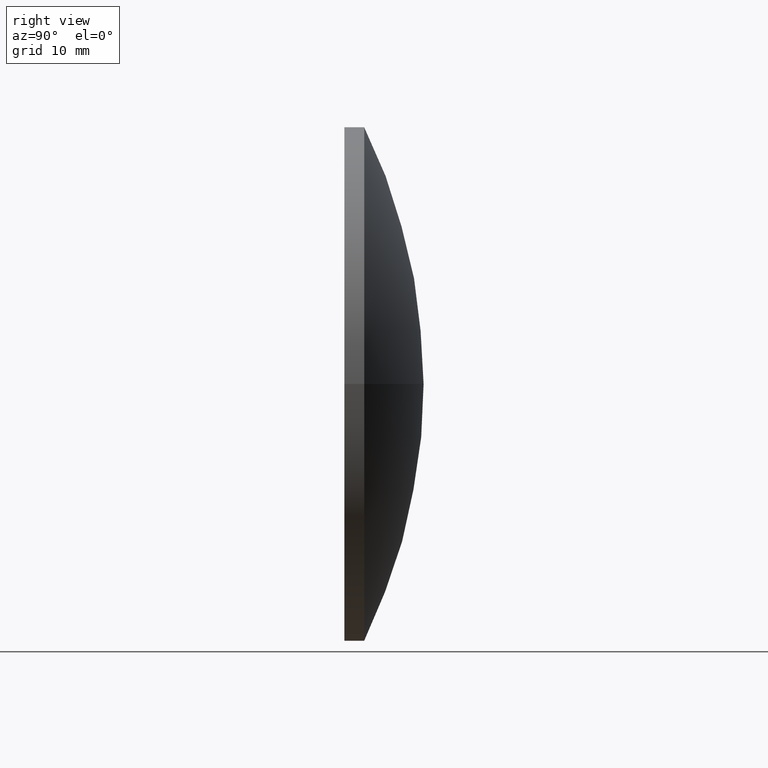
[diagram: clean part render]
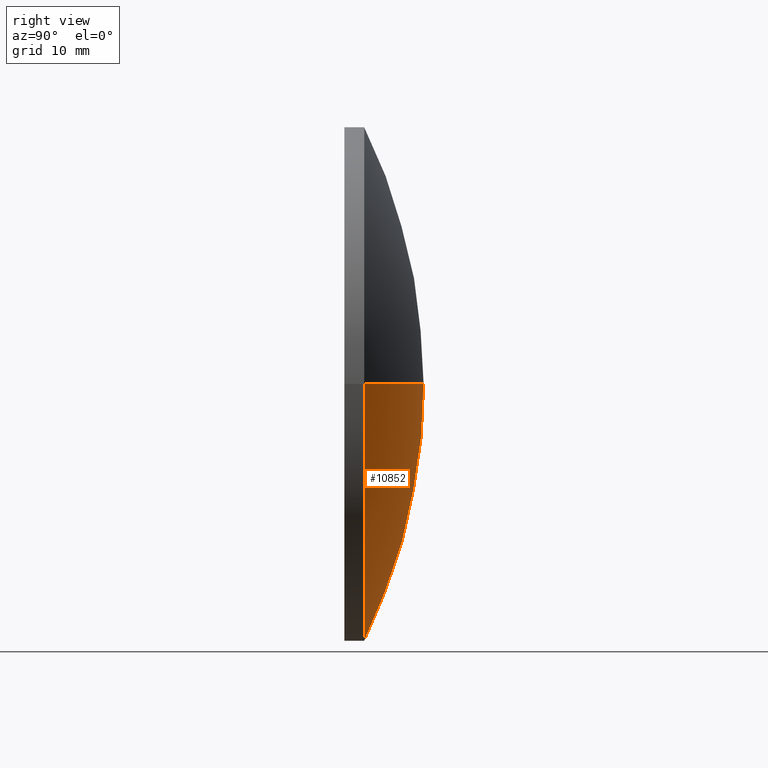
[diagram: same view with one face highlighted and labeled with its STEP entity id]
A machine part, right view. The second image highlights one B-rep face of the part: STEP entity #10852.
In plain terms, the highlighted spherical surface has radius 59.3333 mm.
Its self-contained STEP definition (entity closure, byte-faithful):
#46 = CIRCLE ( 'NONE', #12468, 59.33333333333327900 ) ;
#378 = DIRECTION ( 'NONE',  ( 1.000000000000000000, -8.303283154675511300E-015, 0.0000000000000000000 ) ) ;
#1183 = AXIS2_PLACEMENT_3D ( 'NONE', #8632, #10585, #12597 ) ;
#1254 = EDGE_LOOP ( 'NONE', ( #2839, #2868, #2655 ) ) ;
#1559 = FACE_OUTER_BOUND ( 'NONE', #1254, .T. ) ;
#1754 = CARTESIAN_POINT ( 'NONE',  ( 26.00000000000001400, 1.999999999999988000, 0.0000000000000000000 ) ) ;
#1821 = AXIS2_PLACEMENT_3D ( 'NONE', #5172, #7203, #378 ) ;
#2017 = AXIS2_PLACEMENT_3D ( 'NONE', #5808, #10691, #2878 ) ;
#2655 = ORIENTED_EDGE ( 'NONE', *, *, #6432, .F. ) ;
#2839 = ORIENTED_EDGE ( 'NONE', *, *, #5864, .F. ) ;
#2868 = ORIENTED_EDGE ( 'NONE', *, *, #3366, .T. ) ;
#2878 = DIRECTION ( 'NONE',  ( 1.000000000000000000, -8.273296577735526200E-015, 0.0000000000000000000 ) ) ;
#3366 = EDGE_CURVE ( 'NONE', #8428, #9216, #5166, .T. ) ;
#5166 = CIRCLE ( 'NONE', #1183, 59.33333333333327900 ) ;
#5172 = CARTESIAN_POINT ( 'NONE',  ( 1.653234614285870000E-014, -51.33333333333328600, 0.0000000000000000000 ) ) ;
#5808 = CARTESIAN_POINT ( 'NONE',  ( -3.306469228571561400E-014, 2.000000000000202900, 0.0000000000000000000 ) ) ;
#5864 = EDGE_CURVE ( 'NONE', #8428, #5869, #46, .T. ) ;
#5869 = VERTEX_POINT ( 'NONE', #8770 ) ;
#6432 = EDGE_CURVE ( 'NONE', #5869, #9216, #10577, .T. ) ;
#6595 = SPHERICAL_SURFACE ( 'NONE', #1821, 59.33333333333327900 ) ;
#6921 = DIRECTION ( 'NONE',  ( 1.000000000000000000, 0.0000000000000000000, -1.224646799147353200E-016 ) ) ;
#7203 = DIRECTION ( 'NONE',  ( -0.0000000000000000000, 0.0000000000000000000, 1.000000000000000000 ) ) ;
#7400 = CARTESIAN_POINT ( 'NONE',  ( 5.106250672184695400E-013, 7.999999999999992900, 0.0000000000000000000 ) ) ;
#8428 = VERTEX_POINT ( 'NONE', #7400 ) ;
#8632 = CARTESIAN_POINT ( 'NONE',  ( 1.653234614285870000E-014, -51.33333333333328600, 0.0000000000000000000 ) ) ;
#8770 = CARTESIAN_POINT ( 'NONE',  ( -26.00000000000008200, 2.000000000000418300, 3.184081677783124100E-015 ) ) ;
#9216 = VERTEX_POINT ( 'NONE', #1754 ) ;
#10425 = CARTESIAN_POINT ( 'NONE',  ( 1.653234614285870000E-014, -51.33333333333328600, 0.0000000000000000000 ) ) ;
#10577 = CIRCLE ( 'NONE', #2017, 26.00000000000004600 ) ;
#10585 = DIRECTION ( 'NONE',  ( 0.0000000000000000000, 0.0000000000000000000, -1.000000000000000000 ) ) ;
#10691 = DIRECTION ( 'NONE',  ( -8.266173071429340400E-015, -1.000000000000000000, -0.0000000000000000000 ) ) ;
#10852 = ADVANCED_FACE ( 'NONE', ( #1559 ), #6595, .T. ) ;
#10877 = DIRECTION ( 'NONE',  ( 1.224646799147353200E-016, -1.012314239312398700E-030, 1.000000000000000000 ) ) ;
#12468 = AXIS2_PLACEMENT_3D ( 'NONE', #10425, #10877, #6921 ) ;
#12597 = DIRECTION ( 'NONE',  ( -1.000000000000000000, 0.0000000000000000000, 0.0000000000000000000 ) ) ;